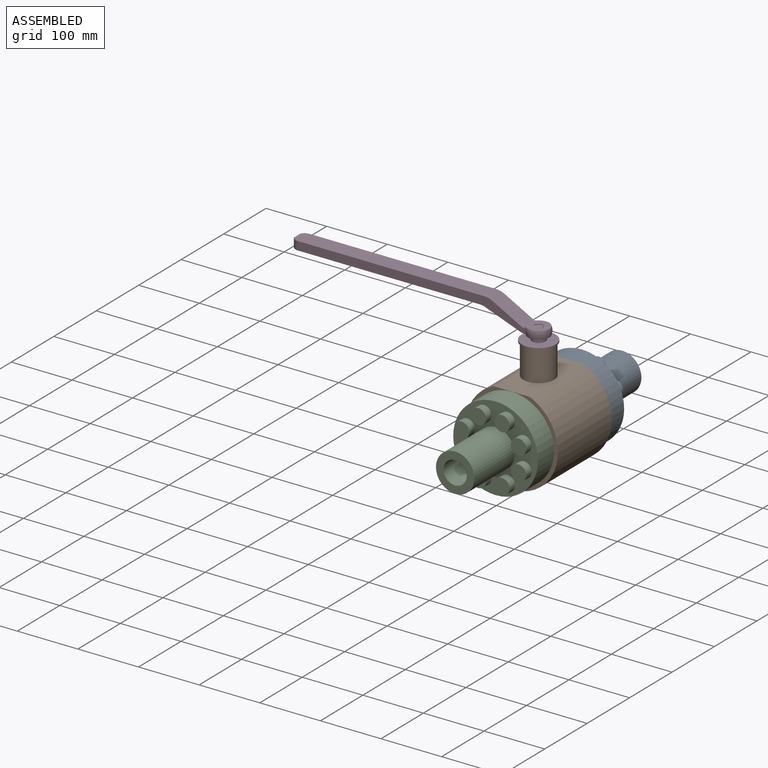
[diagram: assembled view]
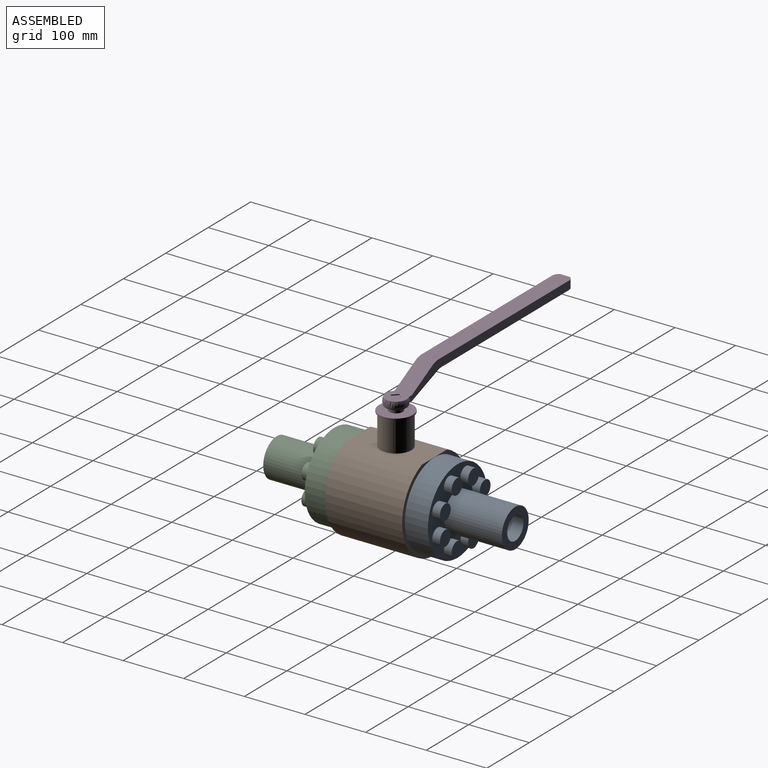
[diagram: assembled view, second angle]
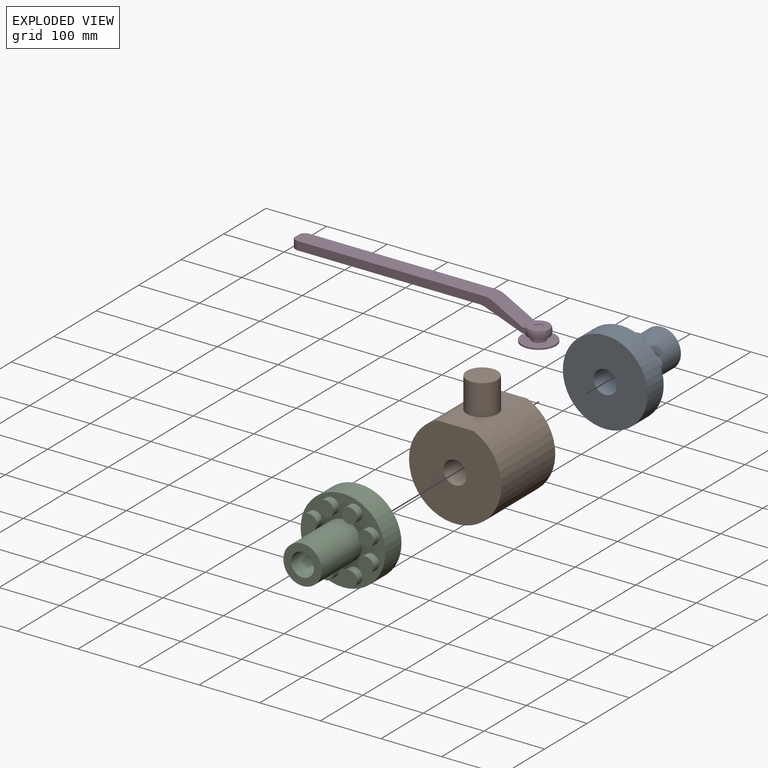
[diagram: exploded view]
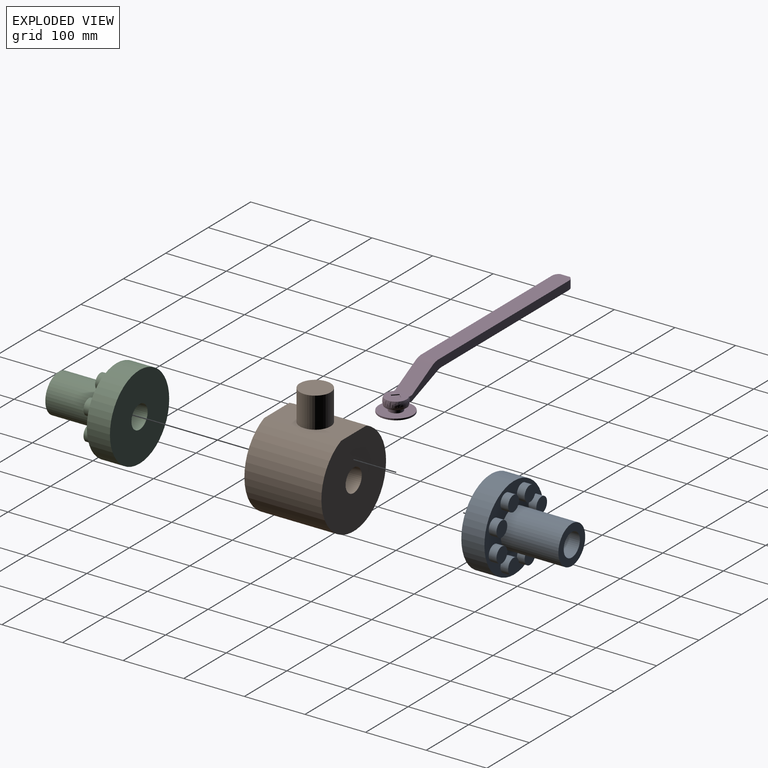
[diagram: exploded view, second angle]
ASSEMBLY  parts=4 mates=3
PART A: 22 faces, bbox 139.7x133.4x139.7 mm
  f0: cylinder r=69.85mm len=139.7mm, axis (0,-1,0), area 16721.3mm2, adj f1,f2
  f1: plane 139.7x139.7mm, normal (0,1,0), area 8132.6mm2, adj f0,f3,f5,f7,f9,f11,f13,f15
  f2: plane 139.7x139.7mm, normal (0,-1,0), area 14187.8mm2, adj f0,f21
  f3: cylinder r=31.62mm len=95.25mm, axis (0,-1,0), area 18925.5mm2, adj f1,f4
  f4: plane 63.25x63.25mm, normal (0,1,0), area 2001.5mm2, adj f3,f21
  f5: cylinder r=12.7mm len=25.4mm, axis (0,-1,0), area 1013.4mm2, adj f1,f6
  f6: plane 25.4x25.4mm, normal (0,1,0), area 506.7mm2, adj f5
  f7: cylinder r=12.7mm len=25.4mm, axis (0,-1,0), area 1013.4mm2, adj f1,f8
  f8: plane 25.4x25.4mm, normal (0,1,0), area 506.7mm2, adj f7
  f9: cylinder r=12.7mm len=25.4mm, axis (0,-1,0), area 1013.4mm2, adj f1,f10
  f10: plane 25.4x25.4mm, normal (0,1,0), area 506.7mm2, adj f9
  f11: cylinder r=12.7mm len=25.4mm, axis (0,-1,0), area 1013.4mm2, adj f1,f12
  f12: plane 25.4x25.4mm, normal (0,1,0), area 506.7mm2, adj f11
  f13: cylinder r=12.7mm len=25.4mm, axis (0,-1,0), area 1013.4mm2, adj f1,f14
  f14: plane 25.4x25.4mm, normal (0,1,0), area 506.7mm2, adj f13
  f15: cylinder r=12.7mm len=25.4mm, axis (0,-1,0), area 1013.4mm2, adj f1,f16
  f16: plane 25.4x25.4mm, normal (0,1,0), area 506.7mm2, adj f15
  f17: cylinder r=12.7mm len=25.4mm, axis (0,-1,0), area 1013.4mm2, adj f1,f18
  f18: plane 25.4x25.4mm, normal (0,1,0), area 506.7mm2, adj f17
  f19: cylinder r=12.7mm len=25.4mm, axis (0,-1,0), area 1013.4mm2, adj f1,f20
  f20: plane 25.4x25.4mm, normal (0,1,0), area 506.7mm2, adj f19
  f21: cylinder r=19.05mm len=133.35mm, axis (0,-1,0), area 15961.3mm2, adj f2,f4
PART B: 7 faces, bbox 152.4x127x197.1 mm
  f0: plane 152.4x146.3mm, normal (0,-1,0), area 16856.6mm2, adj f1,f3,f4
  f1: cylinder r=76.2mm len=152.4mm, axis (0,1,0), area 53010.4mm2, adj f0,f2,f4
  f2: plane 152.4x146.3mm, normal (0,1,0), area 16856.6mm2, adj f1,f3,f4
  f3: cylinder r=19.05mm len=127mm, axis (0,-1,0), area 15201.2mm2, adj f0,f2
  f4: plane 127x59.73mm, normal (0,0,1), area 5558.7mm2, adj f0,f1,f2,f5
  f5: cylinder r=25.4mm len=50.8mm, axis (0,0,-1), area 8107.3mm2, adj f4,f6
  f6: plane 50.8x50.8mm, normal (0,0,1), area 2026.8mm2, adj f5
PART C: 22 faces, bbox 139.7x133.4x139.7 mm
  f0: cylinder r=69.85mm len=139.7mm, axis (0,1,0), area 16721.3mm2, adj f1,f2
  f1: plane 139.7x139.7mm, normal (0,-1,0), area 8132.6mm2, adj f0,f3,f5,f7,f9,f11,f13,f15
  f2: plane 139.7x139.7mm, normal (0,1,0), area 14187.8mm2, adj f0,f21
  f3: cylinder r=31.62mm len=95.25mm, axis (0,1,0), area 18925.5mm2, adj f1,f4
  f4: plane 63.25x63.25mm, normal (0,-1,0), area 2001.5mm2, adj f3,f21
  f5: cylinder r=12.7mm len=25.4mm, axis (0,1,0), area 1013.4mm2, adj f1,f6
  f6: plane 25.4x25.4mm, normal (0,-1,0), area 506.7mm2, adj f5
  f7: cylinder r=12.7mm len=25.4mm, axis (0,1,0), area 1013.4mm2, adj f1,f8
  f8: plane 25.4x25.4mm, normal (0,-1,0), area 506.7mm2, adj f7
  f9: cylinder r=12.7mm len=25.4mm, axis (0,1,0), area 1013.4mm2, adj f1,f10
  f10: plane 25.4x25.4mm, normal (0,-1,0), area 506.7mm2, adj f9
  f11: cylinder r=12.7mm len=25.4mm, axis (0,1,0), area 1013.4mm2, adj f1,f12
  f12: plane 25.4x25.4mm, normal (0,-1,0), area 506.7mm2, adj f11
  f13: cylinder r=12.7mm len=25.4mm, axis (0,1,0), area 1013.4mm2, adj f1,f14
  f14: plane 25.4x25.4mm, normal (0,-1,0), area 506.7mm2, adj f13
  f15: cylinder r=12.7mm len=25.4mm, axis (0,1,0), area 1013.4mm2, adj f1,f16
  f16: plane 25.4x25.4mm, normal (0,-1,0), area 506.7mm2, adj f15
  f17: cylinder r=12.7mm len=25.4mm, axis (0,1,0), area 1013.4mm2, adj f1,f18
  f18: plane 25.4x25.4mm, normal (0,-1,0), area 506.7mm2, adj f17
  f19: cylinder r=12.7mm len=25.4mm, axis (0,1,0), area 1013.4mm2, adj f1,f20
  f20: plane 25.4x25.4mm, normal (0,-1,0), area 506.7mm2, adj f19
  f21: cylinder r=19.05mm len=133.35mm, axis (0,-1,0), area 15961.3mm2, adj f2,f4
PART D: 29 faces, bbox 56.2x428.3x53.3 mm
  f0: cylinder r=2.82mm len=18.68mm, axis (1,0,0), area 50.5mm2, adj f1,f4,f8,f9
  f1: plane 8.45x2.8mm, normal (0,1,0), area 23.7mm2, adj f0,f2,f4,f9
  f2: cylinder r=2.82mm len=18.68mm, axis (1,0,0), area 50.5mm2, adj f1,f4,f5,f9
  f3: plane 16.8x16.8mm, normal (0,0,1), area 141.1mm2, adj f10,f11,f12,f13
  f4: cylinder r=12.6mm len=14.08mm, axis (0,0,-1), area 260mm2, adj f0,f1,f2,f5,f8,f17
  f5: plane 317.26x28mm, normal (0,0,1), area 8855.7mm2, adj f2,f4,f6,f9,f17,f21
  f6: cylinder r=29.46mm len=28mm, axis (1,0,0), area 404.2mm2, adj f5,f15,f17,f21
  f7: cylinder r=28.26mm len=28mm, axis (1,0,0), area 280.1mm2, adj f8,f17,f19,f21
  f8: plane 309.26x28mm, normal (0,0,-1), area 8631.6mm2, adj f0,f4,f7,f9,f17,f21
  f9: cylinder r=12.6mm len=14.08mm, axis (0,0,1), area 260mm2, adj f0,f1,f2,f5,f8,f21
  f10: plane 8.4x8.4mm, normal (-0.71,-0.71,0), area 15.2mm2, adj f3,f11,f13,f22
  f11: plane 8.4x8.4mm, normal (0.71,-0.71,0), area 15.2mm2, adj f3,f10,f12,f22
  f12: plane 8.4x8.4mm, normal (0.71,0.71,0), area 15.2mm2, adj f3,f11,f13,f22
  f13: plane 8.4x8.4mm, normal (-0.71,0.71,0), area 15.2mm2, adj f3,f10,f12,f22
  f14: plane 10.21x6.34mm, normal (0,0,1), area 24mm2, adj f15,f21,f23
  f15: plane 48.82x28.17mm, normal (0,-0.47,0.88), area 1542mm2, adj f6,f14,f16,f17,f21,f23
  f16: plane 10.21x6.34mm, normal (0,0,1), area 24mm2, adj f15,f17,f23
  f17: plane 376.34x38.27mm, normal (1,0,0), area 5236.2mm2, adj f4,f5,f6,f7,f8,f15,f16,f18
  f18: plane 8.94x5.85mm, normal (0,0,-1), area 20.4mm2, adj f17,f19,f23
  f19: plane 60.73x28mm, normal (0,0.35,-0.94), area 1807.2mm2, adj f7,f17,f18,f20,f21,f23
  f20: plane 8.94x5.85mm, normal (0,0,-1), area 20.4mm2, adj f19,f21,f23
  f21: plane 376.34x38.27mm, normal (-1,0,0), area 5236.2mm2, adj f5,f6,f7,f8,f9,f14,f15,f19
  f22: plane 35x35mm, normal (0,0,1), area 821mm2, adj f10,f11,f12,f13,f23
  f23: sphere r=18.61mm, area 1195.1mm2, adj f14,f15,f16,f17,f18,f19,f20,f21
  f24: plane 35x35mm, normal (0,0,-1), area 568mm2, adj f23,f25
  f25: cylinder r=11.2mm len=22.4mm, axis (0,0,1), area 538.3mm2, adj f24,f26
  f26: plane 56x56mm, normal (0,0,1), area 2068.9mm2, adj f25,f27
  f27: cylinder r=28mm len=56mm, axis (0,0,1), area 448.6mm2, adj f26,f28
  f28: plane 56x56mm, normal (0,0,-1), area 2463mm2, adj f27
PLACE A at identity
PLACE B at identity fixed
PLACE C at identity
PLACE D rot(axis=(0,0,1),90deg) t=(0,0,43.9)mm
MATE cylindrical A.f21 <-> B.f3  axis (0,-1,0) through (0,63.5,0)mm
MATE cylindrical C.f0 <-> B.f3  axis (0,1,0) through (0,-63.5,0)mm
MATE cylindrical D.f25 <-> B.f5  axis (0,0,-1) through (0,0,120.9)mm
